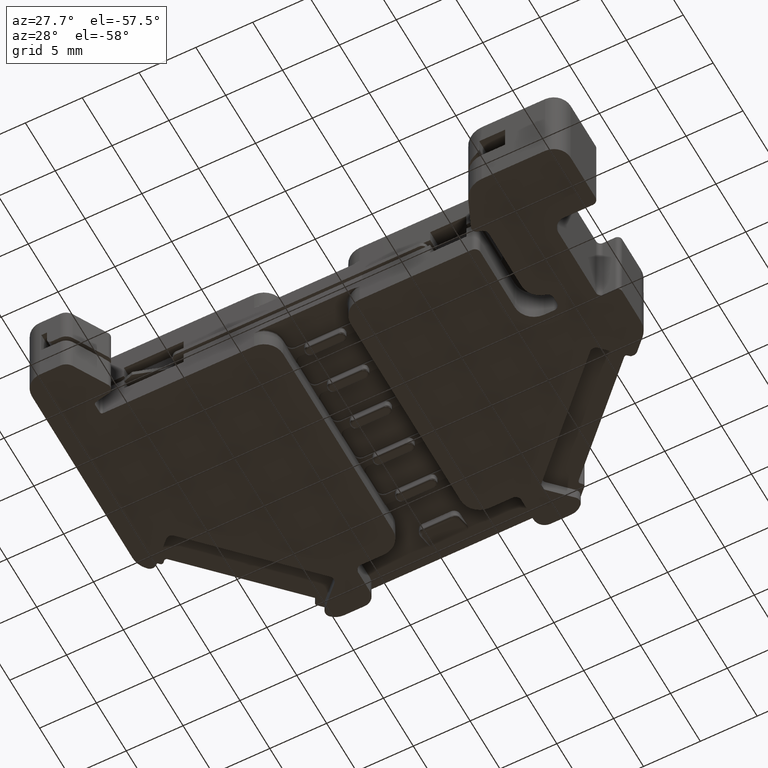
[diagram: clean part render]
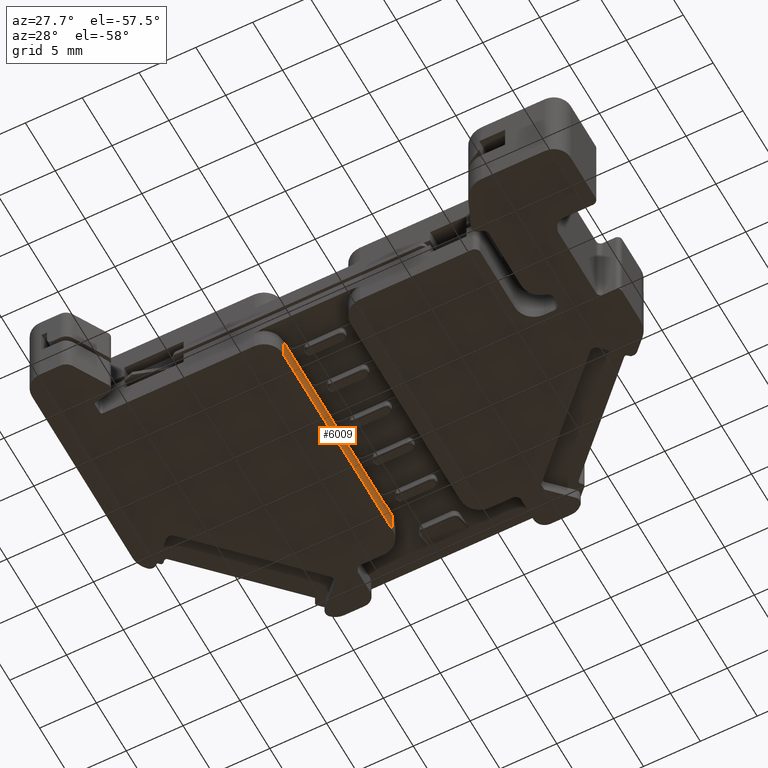
[diagram: same view with one face highlighted and labeled with its STEP entity id]
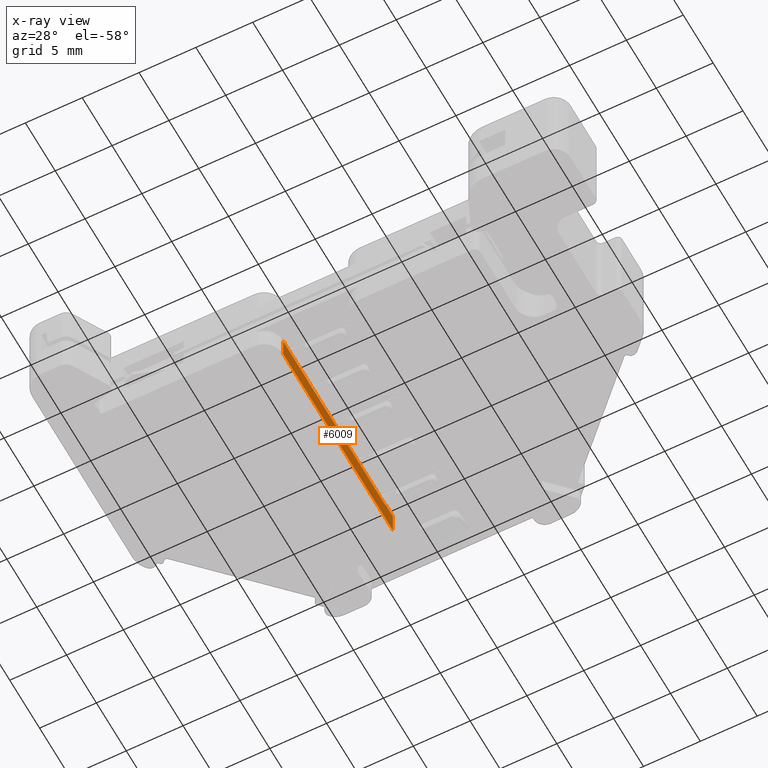
[diagram: x-ray of the same camera — body ghosted, the highlighted face saturated]
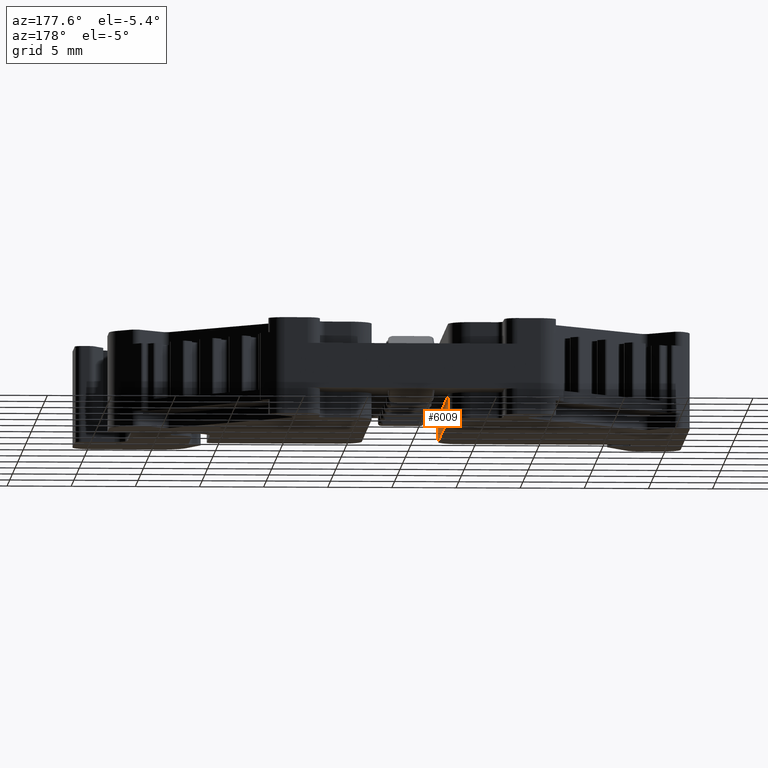
[diagram: same view with one face highlighted and labeled with its STEP entity id]
A machine part, auxiliary view. The second image highlights one B-rep face of the part: STEP entity #6009.
The next image is the same camera in x-ray: the body ghosted, the highlighted face saturated — about 0% of this face is hidden behind the body in this view.
A second angle (auxiliary view) of the same face is appended — the face is thin or edge-on in the first view.
In plain terms, the highlighted planar face has unit normal (-1, 0, 0).
Its self-contained STEP definition (entity closure, byte-faithful):
#19 = LINE ( 'NONE', #22, #16477 ) ;
#22 = CARTESIAN_POINT ( 'NONE',  ( -262.3933901824746600, -22.97155949835023100, 3.002021596245508600 ) ) ;
#36 = DIRECTION ( 'NONE',  ( 0.0000000000000000000, 1.000000000000000000, 0.0000000000000000000 ) ) ;
#51 = CARTESIAN_POINT ( 'NONE',  ( -262.3933901824746600, -2.907361141708197900, 1.036658111825507200 ) ) ;
#56 = LINE ( 'NONE', #143, #16586 ) ;
#80 = LINE ( 'NONE', #51, #16510 ) ;
#91 = DIRECTION ( 'NONE',  ( -0.0000000000000000000, -0.0000000000000000000, -1.000000000000000000 ) ) ;
#143 = CARTESIAN_POINT ( 'NONE',  ( -262.3933901824746600, -22.97155949835023100, 2.868494334914007300 ) ) ;
#147 = DIRECTION ( 'NONE',  ( -6.530719028451870700E-015, -1.000000000000000000, -0.0000000000000000000 ) ) ;
#267 = DIRECTION ( 'NONE',  ( -0.0000000000000000000, 1.000000000000000000, 0.0000000000000000000 ) ) ;
#270 = CARTESIAN_POINT ( 'NONE',  ( -262.3933901824747700, -57.01993662607642200, 1.001658111825507000 ) ) ;
#289 = LINE ( 'NONE', #270, #16529 ) ;
#802 = DIRECTION ( 'NONE',  ( 0.0000000000000000000, 0.0000000000000000000, 1.000000000000000000 ) ) ;
#807 = CARTESIAN_POINT ( 'NONE',  ( -262.3933901824746600, -4.194482539670501900, 1.036658111825507200 ) ) ;
#827 = LINE ( 'NONE', #807, #14900 ) ;
#1145 = VERTEX_POINT ( 'NONE', #4626 ) ;
#1196 = VERTEX_POINT ( 'NONE', #4733 ) ;
#1228 = VERTEX_POINT ( 'NONE', #4721 ) ;
#1365 = VERTEX_POINT ( 'NONE', #4788 ) ;
#1387 = VERTEX_POINT ( 'NONE', #4837 ) ;
#1391 = VERTEX_POINT ( 'NONE', #4862 ) ;
#1399 = VERTEX_POINT ( 'NONE', #4842 ) ;
#1411 = VERTEX_POINT ( 'NONE', #4863 ) ;
#1449 = VERTEX_POINT ( 'NONE', #4858 ) ;
#1450 = VERTEX_POINT ( 'NONE', #4815 ) ;
#4626 = CARTESIAN_POINT ( 'NONE',  ( -262.3933901824747200, -20.78002672168740600, 2.868494334913327800 ) ) ;
#4721 = CARTESIAN_POINT ( 'NONE',  ( -262.3933901824747700, -18.94819049859890500, 2.868494334912831800 ) ) ;
#4733 = CARTESIAN_POINT ( 'NONE',  ( -262.3933901824747200, -16.96782701417890500, 2.868494334913143500 ) ) ;
#4788 = CARTESIAN_POINT ( 'NONE',  ( -262.3933901824745500, -7.511591376073395700, 2.868494334912868600 ) ) ;
#4815 = CARTESIAN_POINT ( 'NONE',  ( -262.3933901824746600, -4.194482539670501900, 2.868494334912858900 ) ) ;
#4837 = CARTESIAN_POINT ( 'NONE',  ( -262.3933901824746600, -11.32379108358131800, 2.868494334912868600 ) ) ;
#4842 = CARTESIAN_POINT ( 'NONE',  ( -262.3933901824745500, -9.343427599161909600, 2.868494334913123600 ) ) ;
#4858 = CARTESIAN_POINT ( 'NONE',  ( -262.3933901824747200, -13.15562730666981200, 2.868494334913123600 ) ) ;
#4862 = CARTESIAN_POINT ( 'NONE',  ( -262.3933901824745500, -5.531227891653999000, 2.868494334913123600 ) ) ;
#4863 = CARTESIAN_POINT ( 'NONE',  ( -262.3933901824747200, -15.13599079109040300, 2.868494334912868200 ) ) ;
#6009 = ADVANCED_FACE ( 'NONE', ( #11794 ), #11755, .F. ) ;
#6356 = EDGE_CURVE ( 'NONE', #1449, #1387, #13448, .T. ) ;
#6383 = EDGE_CURVE ( 'NONE', #1387, #1399, #13633, .T. ) ;
#6396 = EDGE_CURVE ( 'NONE', #1399, #1365, #13673, .T. ) ;
#6403 = EDGE_CURVE ( 'NONE', #1365, #1391, #13761, .T. ) ;
#6469 = EDGE_CURVE ( 'NONE', #1228, #1196, #13990, .T. ) ;
#6470 = EDGE_CURVE ( 'NONE', #1411, #1449, #14002, .T. ) ;
#6476 = EDGE_CURVE ( 'NONE', #1196, #1411, #14037, .T. ) ;
#6478 = EDGE_CURVE ( 'NONE', #1145, #1228, #14027, .T. ) ;
#6543 = EDGE_CURVE ( 'NONE', #1391, #1450, #13196, .T. ) ;
#6998 = EDGE_CURVE ( 'NONE', #22031, #22068, #17437, .T. ) ;
#7014 = EDGE_CURVE ( 'NONE', #10807, #22060, #19, .T. ) ;
#7027 = EDGE_CURVE ( 'NONE', #22060, #22082, #80, .T. ) ;
#7028 = EDGE_CURVE ( 'NONE', #1145, #22068, #56, .T. ) ;
#7073 = EDGE_CURVE ( 'NONE', #22031, #22082, #289, .T. ) ;
#7207 = EDGE_CURVE ( 'NONE', #1450, #10807, #827, .T. ) ;
#7901 = CARTESIAN_POINT ( 'NONE',  ( -262.3933901824747700, -21.28826498491869400, 1.001658111825509700 ) ) ;
#7960 = CARTESIAN_POINT ( 'NONE',  ( -262.3933901824746600, -21.28826498491869400, 2.868494334914007300 ) ) ;
#7968 = CARTESIAN_POINT ( 'NONE',  ( -262.3933901824746600, -2.907361141708195700, 3.002021596245508600 ) ) ;
#8004 = CARTESIAN_POINT ( 'NONE',  ( -262.3933901824747200, -2.907361141708195700, 1.001658111825507000 ) ) ;
#10043 = CARTESIAN_POINT ( 'NONE',  ( -262.3933901824746600, -4.194482539670478800, 3.002021596245508600 ) ) ;
#10807 = VERTEX_POINT ( 'NONE', #10043 ) ;
#11751 = DIRECTION ( 'NONE',  ( -6.530719028451870700E-015, -1.000000000000000000, 0.0000000000000000000 ) ) ;
#11755 = PLANE ( 'NONE',  #23980 ) ;
#11768 = CARTESIAN_POINT ( 'NONE',  ( -262.3933901824747700, -22.97155602059990900, 1.036658111825507200 ) ) ;
#11793 = DIRECTION ( 'NONE',  ( -1.000000000000000000, 6.530719028451870700E-015, 0.0000000000000000000 ) ) ;
#11794 = FACE_OUTER_BOUND ( 'NONE', #20574, .T. ) ;
#13196 = LINE ( 'NONE', #13199, #23474 ) ;
#13199 = CARTESIAN_POINT ( 'NONE',  ( -262.3933901824747700, -22.97155602059990900, 2.868494334913108000 ) ) ;
#13243 = DIRECTION ( 'NONE',  ( 6.530719028451870700E-015, 1.000000000000000000, -0.0000000000000000000 ) ) ;
#13448 = LINE ( 'NONE', #13479, #24333 ) ;
#13479 = CARTESIAN_POINT ( 'NONE',  ( -262.3933901824747700, -22.97155602059990900, 2.868494334913108000 ) ) ;
#13489 = DIRECTION ( 'NONE',  ( 6.530719028451870700E-015, 1.000000000000000000, -0.0000000000000000000 ) ) ;
#13633 = LINE ( 'NONE', #13655, #24335 ) ;
#13636 = DIRECTION ( 'NONE',  ( 6.530719028451870700E-015, 1.000000000000000000, -0.0000000000000000000 ) ) ;
#13655 = CARTESIAN_POINT ( 'NONE',  ( -262.3933901824747700, -22.97155602059990900, 2.868494334912734500 ) ) ;
#13673 = LINE ( 'NONE', #13709, #24366 ) ;
#13693 = DIRECTION ( 'NONE',  ( 6.530719028451870700E-015, 1.000000000000000000, -0.0000000000000000000 ) ) ;
#13709 = CARTESIAN_POINT ( 'NONE',  ( -262.3933901824747700, -22.97155602059990900, 2.868494334913108000 ) ) ;
#13741 = DIRECTION ( 'NONE',  ( 6.530719028451870700E-015, 1.000000000000000000, -0.0000000000000000000 ) ) ;
#13749 = CARTESIAN_POINT ( 'NONE',  ( -262.3933901824747700, -22.97155602059990900, 2.868494334912734500 ) ) ;
#13761 = LINE ( 'NONE', #13749, #24388 ) ;
#13983 = DIRECTION ( 'NONE',  ( 6.530719028451870700E-015, 1.000000000000000000, -0.0000000000000000000 ) ) ;
#13986 = DIRECTION ( 'NONE',  ( 6.530719028451870700E-015, 1.000000000000000000, -0.0000000000000000000 ) ) ;
#13990 = LINE ( 'NONE', #14013, #24392 ) ;
#13999 = CARTESIAN_POINT ( 'NONE',  ( -262.3933901824747700, -22.97155602059990900, 2.868494334912734500 ) ) ;
#14002 = LINE ( 'NONE', #13999, #24394 ) ;
#14013 = CARTESIAN_POINT ( 'NONE',  ( -262.3933901824747700, -22.97155602059990900, 2.868494334912834000 ) ) ;
#14027 = LINE ( 'NONE', #14044, #24489 ) ;
#14030 = CARTESIAN_POINT ( 'NONE',  ( -262.3933901824747700, -22.97155602059990900, 2.868494334913108000 ) ) ;
#14037 = LINE ( 'NONE', #14030, #24468 ) ;
#14044 = CARTESIAN_POINT ( 'NONE',  ( -262.3933901824747700, -22.97155602059990900, 2.868494334912765600 ) ) ;
#14066 = DIRECTION ( 'NONE',  ( 6.530719028451870700E-015, 1.000000000000000000, -0.0000000000000000000 ) ) ;
#14068 = DIRECTION ( 'NONE',  ( 6.530719028451870700E-015, 1.000000000000000000, -0.0000000000000000000 ) ) ;
#14900 = VECTOR ( 'NONE', #802, 1000.000000000000000 ) ;
#16477 = VECTOR ( 'NONE', #36, 1000.000000000000000 ) ;
#16484 = VECTOR ( 'NONE', #17431, 1000.000000000000000 ) ;
#16510 = VECTOR ( 'NONE', #91, 1000.000000000000000 ) ;
#16529 = VECTOR ( 'NONE', #267, 1000.000000000000000 ) ;
#16586 = VECTOR ( 'NONE', #147, 1000.000000000000000 ) ;
#17424 = CARTESIAN_POINT ( 'NONE',  ( -262.3933901824747200, -21.28826498491869400, 1.036658111825507200 ) ) ;
#17431 = DIRECTION ( 'NONE',  ( 0.0000000000000000000, 0.0000000000000000000, 1.000000000000000000 ) ) ;
#17437 = LINE ( 'NONE', #17424, #16484 ) ;
#20574 = EDGE_LOOP ( 'NONE', ( #24545, #24561, #24581, #24560, #24544, #25089, #24559, #25124, #24549, #24536, #24589, #25112, #24571, #24557, #24599 ) ) ;
#22031 = VERTEX_POINT ( 'NONE', #7901 ) ;
#22060 = VERTEX_POINT ( 'NONE', #7968 ) ;
#22068 = VERTEX_POINT ( 'NONE', #7960 ) ;
#22082 = VERTEX_POINT ( 'NONE', #8004 ) ;
#23474 = VECTOR ( 'NONE', #13243, 1000.000000000000000 ) ;
#23980 = AXIS2_PLACEMENT_3D ( 'NONE', #11768, #11793, #11751 ) ;
#24333 = VECTOR ( 'NONE', #13489, 1000.000000000000000 ) ;
#24335 = VECTOR ( 'NONE', #13636, 1000.000000000000000 ) ;
#24366 = VECTOR ( 'NONE', #13693, 1000.000000000000000 ) ;
#24388 = VECTOR ( 'NONE', #13741, 1000.000000000000000 ) ;
#24392 = VECTOR ( 'NONE', #13983, 1000.000000000000000 ) ;
#24394 = VECTOR ( 'NONE', #13986, 1000.000000000000000 ) ;
#24468 = VECTOR ( 'NONE', #14066, 1000.000000000000000 ) ;
#24489 = VECTOR ( 'NONE', #14068, 1000.000000000000000 ) ;
#24536 = ORIENTED_EDGE ( 'NONE', *, *, #7028, .T. ) ;
#24544 = ORIENTED_EDGE ( 'NONE', *, *, #6356, .F. ) ;
#24545 = ORIENTED_EDGE ( 'NONE', *, *, #6543, .F. ) ;
#24549 = ORIENTED_EDGE ( 'NONE', *, *, #6478, .F. ) ;
#24557 = ORIENTED_EDGE ( 'NONE', *, *, #7014, .F. ) ;
#24559 = ORIENTED_EDGE ( 'NONE', *, *, #6476, .F. ) ;
#24560 = ORIENTED_EDGE ( 'NONE', *, *, #6383, .F. ) ;
#24561 = ORIENTED_EDGE ( 'NONE', *, *, #6403, .F. ) ;
#24571 = ORIENTED_EDGE ( 'NONE', *, *, #7027, .F. ) ;
#24581 = ORIENTED_EDGE ( 'NONE', *, *, #6396, .F. ) ;
#24589 = ORIENTED_EDGE ( 'NONE', *, *, #6998, .F. ) ;
#24599 = ORIENTED_EDGE ( 'NONE', *, *, #7207, .F. ) ;
#25089 = ORIENTED_EDGE ( 'NONE', *, *, #6470, .F. ) ;
#25112 = ORIENTED_EDGE ( 'NONE', *, *, #7073, .T. ) ;
#25124 = ORIENTED_EDGE ( 'NONE', *, *, #6469, .F. ) ;